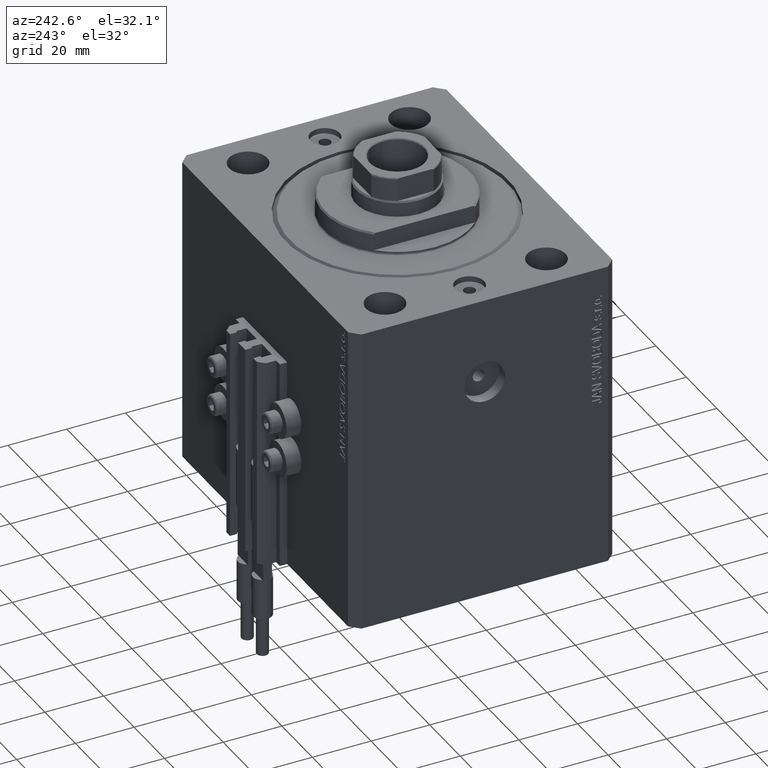
[diagram: clean part render]
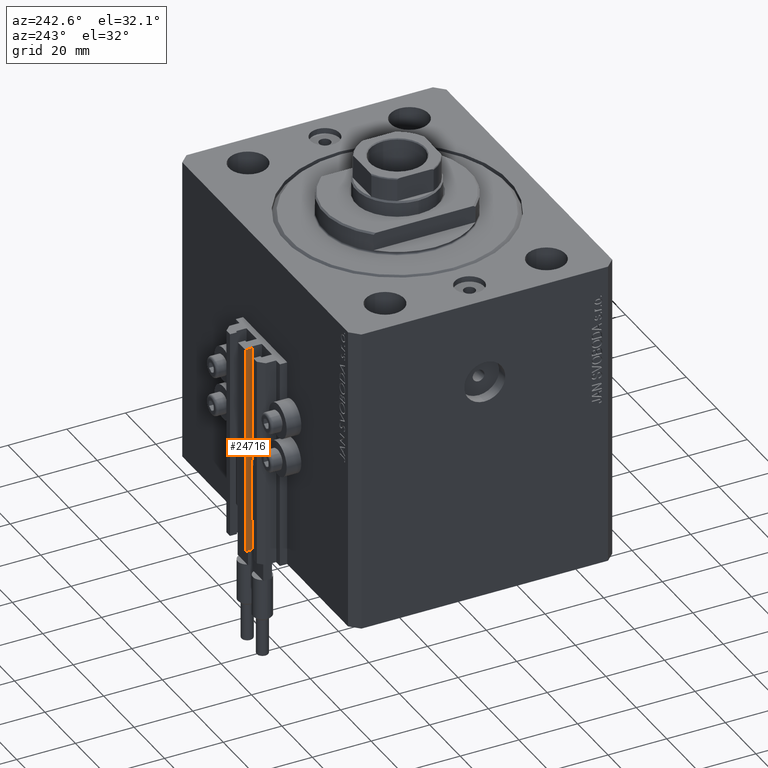
[diagram: same view with one face highlighted and labeled with its STEP entity id]
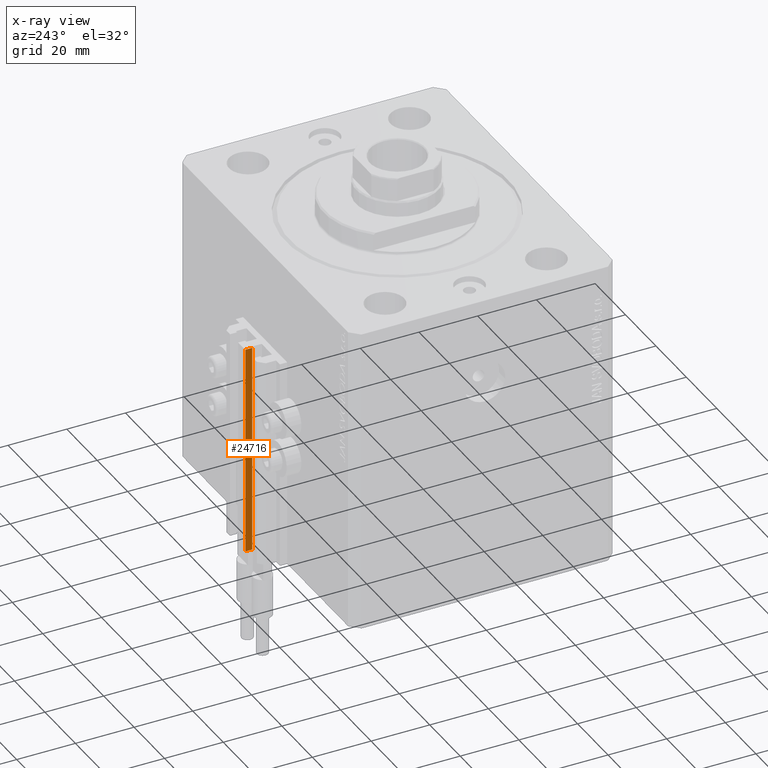
[diagram: x-ray of the same camera — body ghosted, the highlighted face saturated]
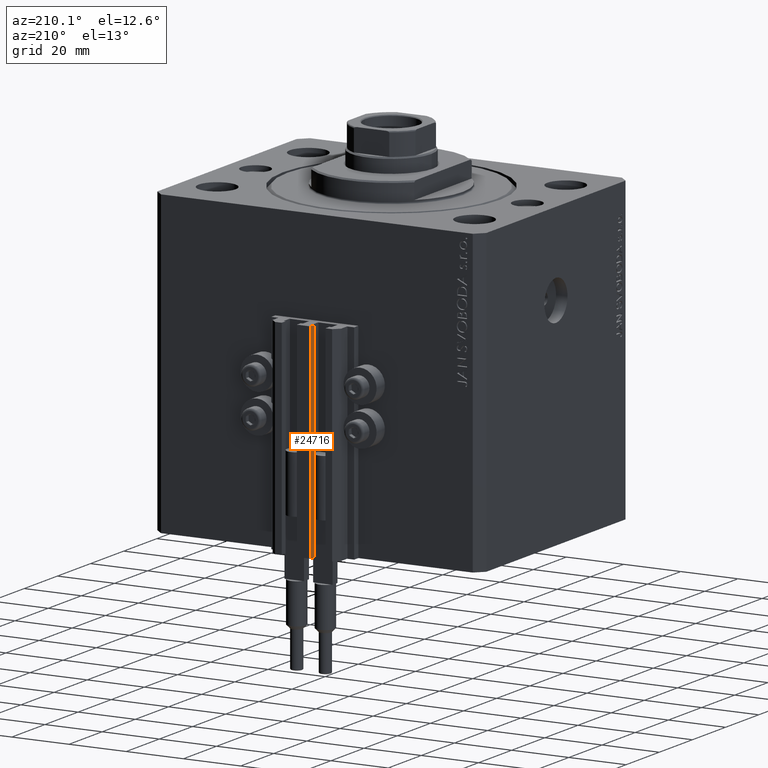
[diagram: same view with one face highlighted and labeled with its STEP entity id]
A machine part, auxiliary view. The second image highlights one B-rep face of the part: STEP entity #24716.
The next image is the same camera in x-ray: the body ghosted, the highlighted face saturated — about 0% of this face is hidden behind the body in this view.
A second angle (auxiliary view) of the same face is appended — the face is thin or edge-on in the first view.
In plain terms, the highlighted planar face has unit normal (-1, -0, 0).
Its self-contained STEP definition (entity closure, byte-faithful):
#732 = CARTESIAN_POINT ( 'NONE',  ( -2.350000000000003197, 50.60000000000000142, -33.00000000000000000 ) ) ;
#2404 = DIRECTION ( 'NONE',  ( 1.807003620809174632E-16, -1.000000000000000000, 0.000000000000000000 ) ) ;
#2688 = VERTEX_POINT ( 'NONE', #732 ) ;
#2718 = EDGE_LOOP ( 'NONE', ( #26009, #24320, #29154, #36080 ) ) ;
#2877 = PLANE ( 'NONE',  #32882 ) ;
#4019 = CARTESIAN_POINT ( 'NONE',  ( -2.350000000000003642, 53.00000000000000000, -105.0000000000000000 ) ) ;
#5555 = CARTESIAN_POINT ( 'NONE',  ( -2.350000000000003642, 53.00000000000000000, -33.00000000000000000 ) ) ;
#6049 = CARTESIAN_POINT ( 'NONE',  ( -2.350000000000003642, 53.00000000000000000, -105.0000000000000000 ) ) ;
#6953 = CARTESIAN_POINT ( 'NONE',  ( -2.350000000000003642, 53.00000000000000000, -105.0000000000000000 ) ) ;
#11092 = DIRECTION ( 'NONE',  ( 0.000000000000000000, 0.000000000000000000, 1.000000000000000000 ) ) ;
#14259 = LINE ( 'NONE', #6953, #30039 ) ;
#15425 = EDGE_CURVE ( 'NONE', #27886, #27134, #14259, .T. ) ;
#16659 = EDGE_CURVE ( 'NONE', #27134, #2688, #36782, .T. ) ;
#18068 = CARTESIAN_POINT ( 'NONE',  ( -2.350000000000003642, 53.00000000000000000, -33.00000000000000000 ) ) ;
#21474 = EDGE_CURVE ( 'NONE', #31002, #2688, #24020, .T. ) ;
#23295 = VECTOR ( 'NONE', #11092, 1000.000000000000000 ) ;
#24020 = LINE ( 'NONE', #5555, #28900 ) ;
#24320 = ORIENTED_EDGE ( 'NONE', *, *, #40811, .F. ) ;
#24716 = ADVANCED_FACE ( 'NONE', ( #32304 ), #2877, .T. ) ;
#25668 = LINE ( 'NONE', #29329, #23295 ) ;
#26009 = ORIENTED_EDGE ( 'NONE', *, *, #21474, .F. ) ;
#27134 = VERTEX_POINT ( 'NONE', #33173 ) ;
#27886 = VERTEX_POINT ( 'NONE', #4019 ) ;
#28900 = VECTOR ( 'NONE', #42704, 1000.000000000000000 ) ;
#29154 = ORIENTED_EDGE ( 'NONE', *, *, #15425, .T. ) ;
#29329 = CARTESIAN_POINT ( 'NONE',  ( -2.350000000000003642, 53.00000000000000000, -105.0000000000000000 ) ) ;
#30039 = VECTOR ( 'NONE', #43637, 1000.000000000000000 ) ;
#31002 = VERTEX_POINT ( 'NONE', #18068 ) ;
#32209 = CARTESIAN_POINT ( 'NONE',  ( -2.350000000000003197, 50.60000000000000142, -105.0000000000000000 ) ) ;
#32304 = FACE_OUTER_BOUND ( 'NONE', #2718, .T. ) ;
#32882 = AXIS2_PLACEMENT_3D ( 'NONE', #6049, #33008, #2404 ) ;
#33008 = DIRECTION ( 'NONE',  ( -1.000000000000000000, -1.807003620809174632E-16, 0.000000000000000000 ) ) ;
#33173 = CARTESIAN_POINT ( 'NONE',  ( -2.350000000000003197, 50.60000000000000142, -105.0000000000000000 ) ) ;
#36080 = ORIENTED_EDGE ( 'NONE', *, *, #16659, .T. ) ;
#36782 = LINE ( 'NONE', #32209, #47794 ) ;
#40811 = EDGE_CURVE ( 'NONE', #27886, #31002, #25668, .T. ) ;
#42704 = DIRECTION ( 'NONE',  ( 1.807003620809174632E-16, -1.000000000000000000, 0.000000000000000000 ) ) ;
#43637 = DIRECTION ( 'NONE',  ( 1.807003620809174632E-16, -1.000000000000000000, 0.000000000000000000 ) ) ;
#44056 = DIRECTION ( 'NONE',  ( 0.000000000000000000, 0.000000000000000000, 1.000000000000000000 ) ) ;
#47794 = VECTOR ( 'NONE', #44056, 1000.000000000000000 ) ;